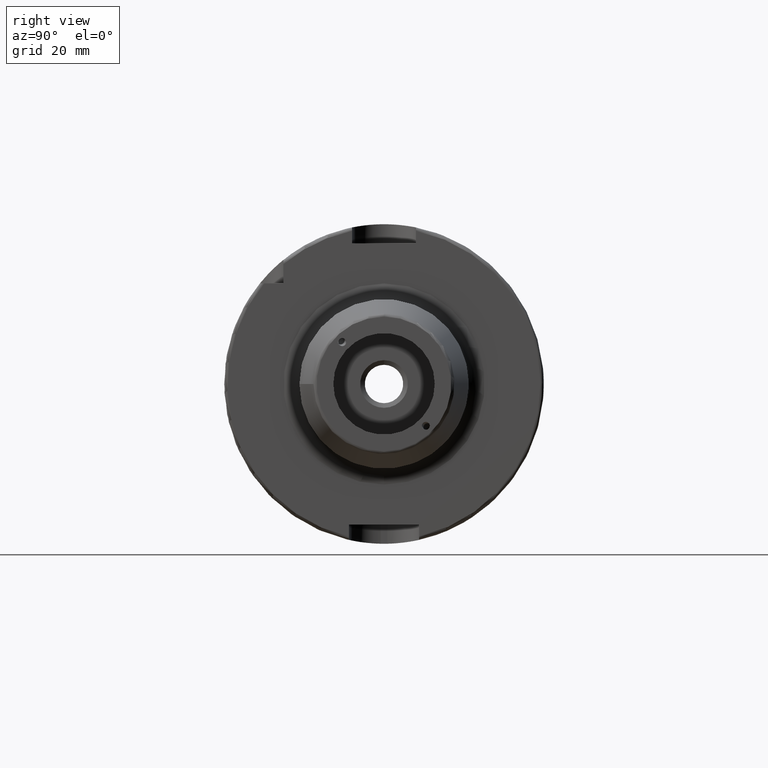
[diagram: clean part render]
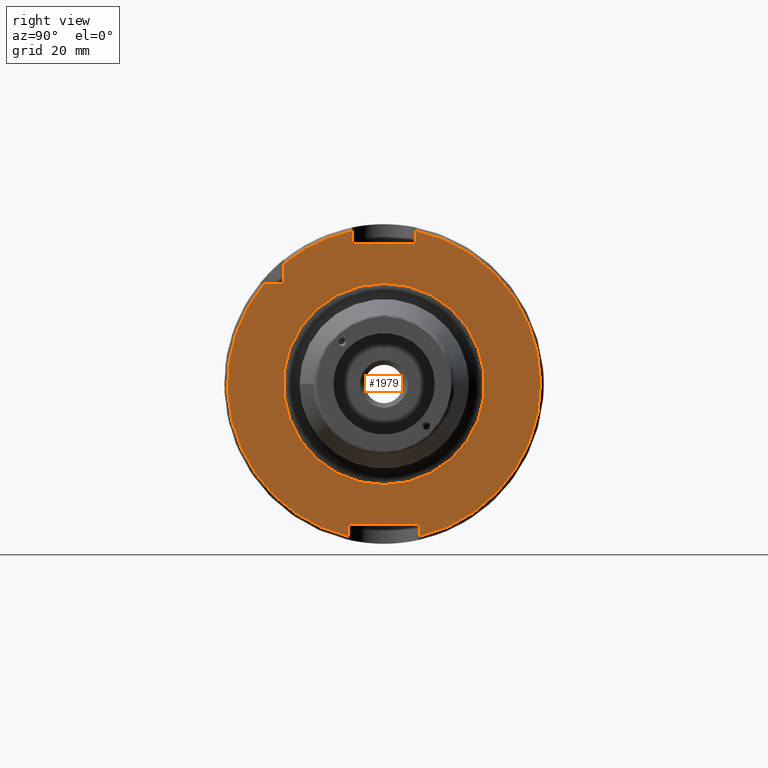
[diagram: same view with one face highlighted and labeled with its STEP entity id]
A machine part, right view. The second image highlights one B-rep face of the part: STEP entity #1979.
In plain terms, the highlighted planar face has unit normal (1, 0, 0).
Its self-contained STEP definition (entity closure, byte-faithful):
#88=FACE_BOUND('',#340,.T.);
#99=PLANE('',#2135);
#217=FACE_OUTER_BOUND('',#339,.T.);
#339=EDGE_LOOP('',(#1361,#1362,#1363,#1364,#1365,#1366,#1367,#1368,#1369,
#1370,#1371));
#340=EDGE_LOOP('',(#1372));
#465=LINE('',#3039,#572);
#466=LINE('',#3043,#573);
#467=LINE('',#3045,#574);
#468=LINE('',#3047,#575);
#469=LINE('',#3051,#576);
#470=LINE('',#3053,#577);
#471=LINE('',#3055,#578);
#472=LINE('',#3058,#579);
#572=VECTOR('',#2425,10.);
#573=VECTOR('',#2428,10.);
#574=VECTOR('',#2429,10.);
#575=VECTOR('',#2430,10.);
#576=VECTOR('',#2433,10.);
#577=VECTOR('',#2434,10.);
#578=VECTOR('',#2435,10.);
#579=VECTOR('',#2438,10.);
#683=CIRCLE('',#2132,31.5);
#685=CIRCLE('',#2136,49.);
#686=CIRCLE('',#2137,49.);
#687=CIRCLE('',#2138,49.);
#816=VERTEX_POINT('',#3030);
#817=VERTEX_POINT('',#3037);
#818=VERTEX_POINT('',#3038);
#819=VERTEX_POINT('',#3040);
#820=VERTEX_POINT('',#3042);
#821=VERTEX_POINT('',#3044);
#822=VERTEX_POINT('',#3046);
#823=VERTEX_POINT('',#3048);
#824=VERTEX_POINT('',#3050);
#825=VERTEX_POINT('',#3052);
#826=VERTEX_POINT('',#3054);
#827=VERTEX_POINT('',#3056);
#1025=EDGE_CURVE('',#816,#816,#683,.T.);
#1028=EDGE_CURVE('',#817,#818,#465,.T.);
#1029=EDGE_CURVE('',#818,#819,#685,.T.);
#1030=EDGE_CURVE('',#819,#820,#466,.T.);
#1031=EDGE_CURVE('',#820,#821,#467,.T.);
#1032=EDGE_CURVE('',#821,#822,#468,.T.);
#1033=EDGE_CURVE('',#822,#823,#686,.T.);
#1034=EDGE_CURVE('',#823,#824,#469,.T.);
#1035=EDGE_CURVE('',#824,#825,#470,.T.);
#1036=EDGE_CURVE('',#825,#826,#471,.T.);
#1037=EDGE_CURVE('',#826,#827,#687,.T.);
#1038=EDGE_CURVE('',#827,#817,#472,.T.);
#1361=ORIENTED_EDGE('',*,*,#1028,.T.);
#1362=ORIENTED_EDGE('',*,*,#1029,.T.);
#1363=ORIENTED_EDGE('',*,*,#1030,.T.);
#1364=ORIENTED_EDGE('',*,*,#1031,.T.);
#1365=ORIENTED_EDGE('',*,*,#1032,.T.);
#1366=ORIENTED_EDGE('',*,*,#1033,.T.);
#1367=ORIENTED_EDGE('',*,*,#1034,.T.);
#1368=ORIENTED_EDGE('',*,*,#1035,.T.);
#1369=ORIENTED_EDGE('',*,*,#1036,.T.);
#1370=ORIENTED_EDGE('',*,*,#1037,.T.);
#1371=ORIENTED_EDGE('',*,*,#1038,.T.);
#1372=ORIENTED_EDGE('',*,*,#1025,.F.);
#1979=ADVANCED_FACE('',(#217,#88),#99,.T.);
#2132=AXIS2_PLACEMENT_3D('',#3032,#2416,#2417);
#2135=AXIS2_PLACEMENT_3D('',#3036,#2423,#2424);
#2136=AXIS2_PLACEMENT_3D('',#3041,#2426,#2427);
#2137=AXIS2_PLACEMENT_3D('',#3049,#2431,#2432);
#2138=AXIS2_PLACEMENT_3D('',#3057,#2436,#2437);
#2416=DIRECTION('center_axis',(1.,0.,0.));
#2417=DIRECTION('ref_axis',(0.,-1.,-1.22464679914735E-16));
#2423=DIRECTION('center_axis',(1.,0.,0.));
#2424=DIRECTION('ref_axis',(0.,0.,-1.));
#2425=DIRECTION('',(0.,-1.,0.));
#2426=DIRECTION('center_axis',(1.,0.,0.));
#2427=DIRECTION('ref_axis',(0.,0.,-1.));
#2428=DIRECTION('',(0.,0.,1.));
#2429=DIRECTION('',(0.,1.,0.));
#2430=DIRECTION('',(0.,0.,-1.));
#2431=DIRECTION('center_axis',(1.,0.,0.));
#2432=DIRECTION('ref_axis',(0.,0.,-1.));
#2433=DIRECTION('',(0.,0.,-1.));
#2434=DIRECTION('',(0.,-1.,0.));
#2435=DIRECTION('',(0.,0.,1.));
#2436=DIRECTION('center_axis',(1.,0.,0.));
#2437=DIRECTION('ref_axis',(0.,0.,-1.));
#2438=DIRECTION('',(0.,0.,-1.));
#3030=CARTESIAN_POINT('',(29.,-3.85763741731416E-15,-31.5));
#3032=CARTESIAN_POINT('Origin',(29.,0.,0.));
#3036=CARTESIAN_POINT('Origin',(29.,0.,0.));
#3037=CARTESIAN_POINT('',(29.,-31.5,31.5));
#3038=CARTESIAN_POINT('',(29.,-37.5333185316726,31.5));
#3039=CARTESIAN_POINT('',(29.,-18.25,31.5));
#3040=CARTESIAN_POINT('',(29.,-11.,-47.7493455452533));
#3041=CARTESIAN_POINT('Origin',(29.,0.,0.));
#3042=CARTESIAN_POINT('',(29.,-11.,-44.));
#3043=CARTESIAN_POINT('',(29.,-11.,-22.));
#3044=CARTESIAN_POINT('',(29.,11.,-44.));
#3045=CARTESIAN_POINT('',(29.,-5.55111512312578E-16,-44.));
#3046=CARTESIAN_POINT('',(29.,11.,-47.7493455452533));
#3047=CARTESIAN_POINT('',(29.,11.,-22.));
#3048=CARTESIAN_POINT('',(29.,10.,47.9687398208458));
#3049=CARTESIAN_POINT('Origin',(29.,0.,0.));
#3050=CARTESIAN_POINT('',(29.,10.,44.));
#3051=CARTESIAN_POINT('',(29.,10.,22.));
#3052=CARTESIAN_POINT('',(29.,-10.,44.));
#3053=CARTESIAN_POINT('',(29.,0.,44.));
#3054=CARTESIAN_POINT('',(29.,-10.,47.9687398208458));
#3055=CARTESIAN_POINT('',(29.,-10.,22.));
#3056=CARTESIAN_POINT('',(29.,-31.5,37.5333185316726));
#3057=CARTESIAN_POINT('Origin',(29.,0.,0.));
#3058=CARTESIAN_POINT('',(29.,-31.5,15.75));